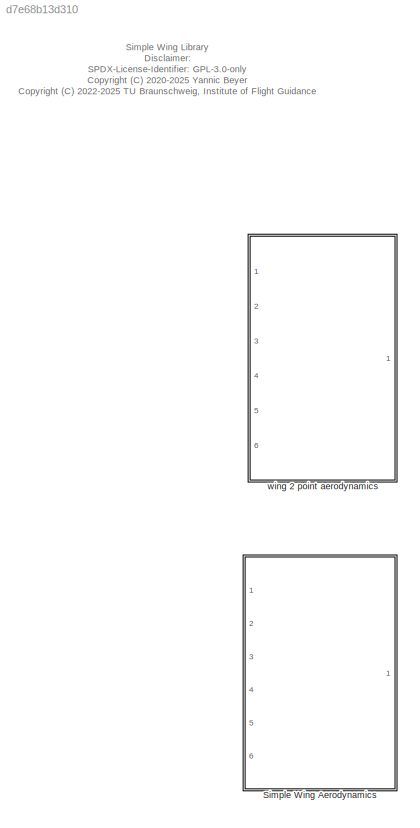
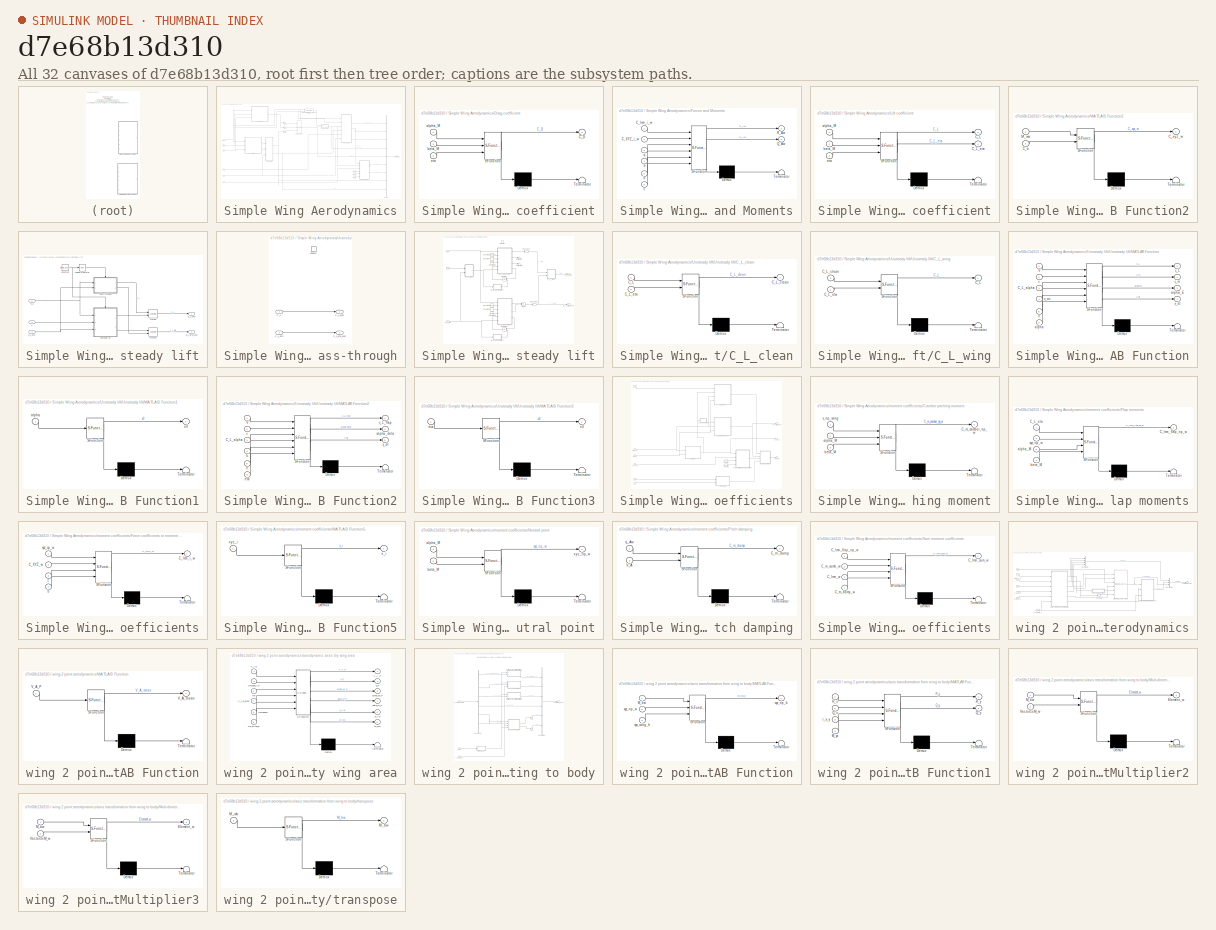
[diagram: thumbnail index - all 32 canvases of the model, root first then tree order]
MODEL slx_d7e68b13d310
KIND library
CONFIG AbsTol = auto
CONFIG EnableMultiTasking = off
CONFIG FixedStep = auto
CONFIG MaxStep = auto
CONFIG MinStep = auto
CONFIG RelTol = 1e-3
CONFIG SampleTimeConstraint = Unconstrained
CONFIG Solver = VariableStepAuto
CONFIG SolverName = VariableStepAuto
CONFIG StartTime = 0.0
CONFIG StopTime = 10.0
BLOCK [SubSystem] Simple Wing Aerodynamics
  Ports = [6, 1]
  RequestExecContextInheritance = off
BLOCK [BusCreator] Simple Wing Aerodynamics/Bus Creator
  DisplayOption = bar
  InheritFromInputs = on
  Inputs = 9
  Ports = [9, 1]
BLOCK [SubSystem] Simple Wing Aerodynamics/Drag coefficient
  ErrorFcn = Stateflow.Translate.translate
  PermitHierarchicalResolution = ExplicitOnly
  Ports = [3, 1]
  RequestExecContextInheritance = off
  SFBlockType = MATLAB Function
  TreatAsAtomicUnit = on
BLOCK [Demux] Simple Wing Aerodynamics/Drag coefficient/ Demux 
  Outputs = 1
  Ports = [1, 1]
BLOCK [S-Function] Simple Wing Aerodynamics/Drag coefficient/ SFunction 
  EnableBusSupport = off
  FunctionName = sf_sfun
  Parameters = wing
  PortCounts = [3 2]
  Ports = [3, 2]
  SFcnIsStateOwnerBlock = off
  SFunctionDeploymentMode = off
  Tag = Stateflow S-Function simple_wing_lib 8
BLOCK [Terminator] Simple Wing Aerodynamics/Drag coefficient/ Terminator 
BLOCK [Outport] Simple Wing Aerodynamics/Drag coefficient/C_D
  IconDisplay = Port number
BLOCK [Inport] Simple Wing Aerodynamics/Drag coefficient/alpha_M
  IconDisplay = Port number
BLOCK [Inport] Simple Wing Aerodynamics/Drag coefficient/beta_M
  IconDisplay = Port number
  Port = 2
BLOCK [Inport] Simple Wing Aerodynamics/Drag coefficient/eta
  IconDisplay = Port number
  Port = 3
BLOCK [SubSystem] Simple Wing Aerodynamics/Forces and Moments
  ErrorFcn = Stateflow.Translate.translate
  PermitHierarchicalResolution = ExplicitOnly
  Ports = [6, 2]
  RequestExecContextInheritance = off
  SFBlockType = MATLAB Function
  TreatAsAtomicUnit = on
BLOCK [Demux] Simple Wing Aerodynamics/Forces and Moments/ Demux 
  Outputs = 1
  Ports = [1, 1]
BLOCK [S-Function] Simple Wing Aerodynamics/Forces and Moments/ SFunction 
  EnableBusSupport = off
  FunctionName = sf_sfun
  PortCounts = [6 3]
  Ports = [6, 3]
  SFcnIsStateOwnerBlock = off
  SFunctionDeploymentMode = off
  Tag = Stateflow S-Function simple_wing_lib 10
BLOCK [Terminator] Simple Wing Aerodynamics/Forces and Moments/ Terminator 
BLOCK [Inport] Simple Wing Aerodynamics/Forces and Moments/C_XYZ_i_w
  IconDisplay = Port number
  Port = 2
BLOCK [Inport] Simple Wing Aerodynamics/Forces and Moments/C_lmn_i_w
  IconDisplay = Port number
BLOCK [Outport] Simple Wing Aerodynamics/Forces and Moments/Q_Aw
  IconDisplay = Port number
  Port = 2
BLOCK [Outport] Simple Wing Aerodynamics/Forces and Moments/R_Aw
  IconDisplay = Port number
BLOCK [Inport] Simple Wing Aerodynamics/Forces and Moments/S
  IconDisplay = Port number
  Port = 4
BLOCK [Inport] Simple Wing Aerodynamics/Forces and Moments/b
  IconDisplay = Port number
  Port = 5
BLOCK [Inport] Simple Wing Aerodynamics/Forces and Moments/c
  IconDisplay = Port number
  Port = 6
BLOCK [Inport] Simple Wing Aerodynamics/Forces and Moments/q
  IconDisplay = Port number
  Port = 3
BLOCK [Gain] Simple Wing Aerodynamics/Gain
  Gain = 0
  OutDataTypeStr = Inherit: Inherit via internal rule
  ParamDataTypeStr = Inherit: Inherit via internal rule
  SaturateOnIntegerOverflow = off
BLOCK [Gain] Simple Wing Aerodynamics/Gain4
  Gain = -1
  OutDataTypeStr = Inherit: Inherit via internal rule
  ParamDataTypeStr = Inherit: Inherit via internal rule
  SaturateOnIntegerOverflow = off
BLOCK [Gain] Simple Wing Aerodynamics/Gain5
  Gain = -1
  OutDataTypeStr = Inherit: Inherit via internal rule
  ParamDataTypeStr = Inherit: Inherit via internal rule
  SaturateOnIntegerOverflow = off
BLOCK [SubSystem] Simple Wing Aerodynamics/Lift coefficient
  ErrorFcn = Stateflow.Translate.translate
  PermitHierarchicalResolution = ExplicitOnly
  Ports = [3, 2]
  RequestExecContextInheritance = off
  SFBlockType = MATLAB Function
  TreatAsAtomicUnit = on
BLOCK [Demux] Simple Wing Aerodynamics/Lift coefficient/ Demux 
  Outputs = 1
  Ports = [1, 1]
BLOCK [S-Function] Simple Wing Aerodynamics/Lift coefficient/ SFunction 
  EnableBusSupport = off
  FunctionName = sf_sfun
  Parameters = wing
  PortCounts = [3 3]
  Ports = [3, 3]
  SFcnIsStateOwnerBlock = off
  SFunctionDeploymentMode = off
  Tag = Stateflow S-Function simple_wing_lib 12
BLOCK [Terminator] Simple Wing Aerodynamics/Lift coefficient/ Terminator 
BLOCK [Outport] Simple Wing Aerodynamics/Lift coefficient/C_L
  IconDisplay = Port number
BLOCK [Outport] Simple Wing Aerodynamics/Lift coefficient/C_L_eta
  IconDisplay = Port number
  Port = 2
BLOCK [Inport] Simple Wing Aerodynamics/Lift coefficient/alpha_M
  IconDisplay = Port number
BLOCK [Inport] Simple Wing Aerodynamics/Lift coefficient/beta_M
  IconDisplay = Port number
  Port = 2
BLOCK [Inport] Simple Wing Aerodynamics/Lift coefficient/eta
  IconDisplay = Port number
  Port = 3
BLOCK [SubSystem] Simple Wing Aerodynamics/MATLAB Function2
  ErrorFcn = Stateflow.Translate.translate
  PermitHierarchicalResolution = ExplicitOnly
  Ports = [2, 1]
  RequestExecContextInheritance = off
  SFBlockType = MATLAB Function
  TreatAsAtomicUnit = on
BLOCK [Demux] Simple Wing Aerodynamics/MATLAB Function2/ Demux 
  Outputs = 1
  Ports = [1, 1]
BLOCK [S-Function] Simple Wing Aerodynamics/MATLAB Function2/ SFunction 
  EnableBusSupport = off
  FunctionName = sf_sfun
  PortCounts = [2 2]
  Ports = [2, 2]
  SFcnIsStateOwnerBlock = off
  SFunctionDeploymentMode = off
  Tag = Stateflow S-Function simple_wing_lib 14
BLOCK [Terminator] Simple Wing Aerodynamics/MATLAB Function2/ Terminator 
BLOCK [Inport] Simple Wing Aerodynamics/MATLAB Function2/C_a
  IconDisplay = Port number
  Port = 2
BLOCK [Outport] Simple Wing Aerodynamics/MATLAB Function2/C_xyz_w
  IconDisplay = Port number
BLOCK [Inport] Simple Wing Aerodynamics/MATLAB Function2/M_wa
  IconDisplay = Port number
BLOCK [Concatenate] Simple Wing Aerodynamics/Matrix Concatenate1
  Mode = Multidimensional array
  NumInputs = 3
  Ports = [3, 1]
BLOCK [Reference] Simple Wing Aerodynamics/Rotations Matrix Wind to Body Modified Aero Angles  REF=axes_transformation_lib/Rotations Matrix  (lib defined in slx_69e2413c78c0)
Wind to Body
Modified Aero Angles
  Ports = [2, 1]
  SourceBlock = axes_transformation_lib/Rotations Matrix\nWind to Body\nModified Aero Angles
  SourceProductName = LADAC
  SourceType = SubSystem
BLOCK [Constant] Simple Wing Aerodynamics/S
  Value = wing.geometry.S/2*[1,1]
  VectorParams1D = off
BLOCK [SubSystem] Simple Wing Aerodynamics/Unsteady lift
  Ports = [3, 2]
  RequestExecContextInheritance = off
BLOCK [Inport] Simple Wing Aerodynamics/Unsteady lift/C_L
  IconDisplay = Port number
BLOCK [Inport] Simple Wing Aerodynamics/Unsteady lift/C_L_eta
  IconDisplay = Port number
  Port = 2
BLOCK [Outport] Simple Wing Aerodynamics/Unsteady lift/C_L_eta_unst
  IconDisplay = Port number
  Port = 2
BLOCK [Outport] Simple Wing Aerodynamics/Unsteady lift/C_L_unst
  IconDisplay = Port number
BLOCK [Constant] Simple Wing Aerodynamics/Unsteady lift/Constant
  Value = wing.is_unsteady
BLOCK [Logic] Simple Wing Aerodynamics/Unsteady lift/Logical Operator
  AllPortsSameDT = off
  Operator = NOT
  OutDataTypeStr = boolean
  Ports = [1, 1]
BLOCK [Merge] Simple Wing Aerodynamics/Unsteady lift/Merge
  Ports = [2, 1]
BLOCK [Merge] Simple Wing Aerodynamics/Unsteady lift/Merge1
  Ports = [2, 1]
BLOCK [SubSystem] Simple Wing Aerodynamics/Unsteady lift/Pass-through
  Ports = [2, 2, 1]
  RequestExecContextInheritance = off
BLOCK [Inport] Simple Wing Aerodynamics/Unsteady lift/Pass-through/C_L
  IconDisplay = Port number
BLOCK [Inport] Simple Wing Aerodynamics/Unsteady lift/Pass-through/C_L_eta
  IconDisplay = Port number
  Port = 2
BLOCK [Outport] Simple Wing Aerodynamics/Unsteady lift/Pass-through/C_L_eta_unst
  IconDisplay = Port number
  Port = 2
BLOCK [Outport] Simple Wing Aerodynamics/Unsteady lift/Pass-through/C_L_unst
  IconDisplay = Port number
BLOCK [EnablePort] Simple Wing Aerodynamics/Unsteady lift/Pass-through/Enable
  Ports = []
BLOCK [SubSystem] Simple Wing Aerodynamics/Unsteady lift/Unsteady lift
  Ports = [3, 2, 1]
  RequestExecContextInheritance = off
BLOCK [Inport] Simple Wing Aerodynamics/Unsteady lift/Unsteady lift/C_L
  IconDisplay = Port number
BLOCK [SubSystem] Simple Wing Aerodynamics/Unsteady lift/Unsteady lift/C_L_clean
  ErrorFcn = Stateflow.Translate.translate
  PermitHierarchicalResolution = ExplicitOnly
  Ports = [2, 1]
  RequestExecContextInheritance = off
  SFBlockType = MATLAB Function
  TreatAsAtomicUnit = on
BLOCK [Demux] Simple Wing Aerodynamics/Unsteady lift/Unsteady lift/C_L_clean/ Demux 
  Outputs = 1
  Ports = [1, 1]
BLOCK [S-Function] Simple Wing Aerodynamics/Unsteady lift/Unsteady lift/C_L_clean/ SFunction 
  EnableBusSupport = on
  FunctionName = sf_sfun
  PortCounts = [2 2]
  Ports = [2, 2]
  SFcnIsStateOwnerBlock = off
  SFunctionDeploymentMode = off
  Tag = Stateflow S-Function simple_wing_lib 332
BLOCK [Terminator] Simple Wing Aerodynamics/Unsteady lift/Unsteady lift/C_L_clean/ Terminator 
BLOCK [Inport] Simple Wing Aerodynamics/Unsteady lift/Unsteady lift/C_L_clean/C_L
  IconDisplay = Port number
BLOCK [Outport] Simple Wing Aerodynamics/Unsteady lift/Unsteady lift/C_L_clean/C_L_clean
  IconDisplay = Port number
BLOCK [Inport] Simple Wing Aerodynamics/Unsteady lift/Unsteady lift/C_L_clean/C_L_eta
  IconDisplay = Port number
  Port = 2
BLOCK [Inport] Simple Wing Aerodynamics/Unsteady lift/Unsteady lift/C_L_eta
  IconDisplay = Port number
  Port = 3
BLOCK [Outport] Simple Wing Aerodynamics/Unsteady lift/Unsteady lift/C_L_eta_unst
  IconDisplay = Port number
  Port = 2
BLOCK [Outport] Simple Wing Aerodynamics/Unsteady lift/Unsteady lift/C_L_unst
  IconDisplay = Port number
BLOCK [SubSystem] Simple Wing Aerodynamics/Unsteady lift/Unsteady lift/C_L_wing
  ErrorFcn = Stateflow.Translate.translate
  PermitHierarchicalResolution = ExplicitOnly
  Ports = [2, 1]
  RequestExecContextInheritance = off
  SFBlockType = MATLAB Function
  TreatAsAtomicUnit = on
BLOCK [Demux] Simple Wing Aerodynamics/Unsteady lift/Unsteady lift/C_L_wing/ Demux 
  Outputs = 1
  Ports = [1, 1]
BLOCK [S-Function] Simple Wing Aerodynamics/Unsteady lift/Unsteady lift/C_L_wing/ SFunction 
  EnableBusSupport = on
  FunctionName = sf_sfun
  PortCounts = [2 2]
  Ports = [2, 2]
  SFcnIsStateOwnerBlock = off
  SFunctionDeploymentMode = off
  Tag = Stateflow S-Function simple_wing_lib 333
BLOCK [Terminator] Simple Wing Aerodynamics/Unsteady lift/Unsteady lift/C_L_wing/ Terminator 
BLOCK [Outport] Simple Wing Aerodynamics/Unsteady lift/Unsteady lift/C_L_wing/C_L
  IconDisplay = Port number
BLOCK [Inport] Simple Wing Aerodynamics/Unsteady lift/Unsteady lift/C_L_wing/C_L_clean
  IconDisplay = Port number
BLOCK [Inport] Simple Wing Aerodynamics/Unsteady lift/Unsteady lift/C_L_wing/C_L_eta
  IconDisplay = Port number
  Port = 2
BLOCK [Constant] Simple Wing Aerodynamics/Unsteady lift/Unsteady lift/Constant
  Value = wing.geometry.S/wing.geometry.b
BLOCK [Constant] Simple Wing Aerodynamics/Unsteady lift/Unsteady lift/Constant1
BLOCK [Constant] Simple Wing Aerodynamics/Unsteady lift/Unsteady lift/Constant2
  Value = 0.25
BLOCK [Constant] Simple Wing Aerodynamics/Unsteady lift/Unsteady lift/Constant3
  Value = wing.geometry.S/wing.geometry.b
BLOCK [Constant] Simple Wing Aerodynamics/Unsteady lift/Unsteady lift/Constant4
  Value = wing.flap.lambda_K
BLOCK [Constant] Simple Wing Aerodynamics/Unsteady lift/Unsteady lift/Constant5
BLOCK [Product] Simple Wing Aerodynamics/Unsteady lift/Unsteady lift/Divide
  InputSameDT = off
  Inputs = */
  OutDataTypeStr = Inherit: Inherit via internal rule
  Ports = [2, 1]
  RndMeth = Floor
  SaturateOnIntegerOverflow = off
BLOCK [EnablePort] Simple Wing Aerodynamics/Unsteady lift/Unsteady lift/Enable
  Ports = []
BLOCK [Integrator] Simple Wing Aerodynamics/Unsteady lift/Unsteady lift/Integrator
  InitialConditionSource = external
  Ports = [2, 1]
BLOCK [Integrator] Simple Wing Aerodynamics/Unsteady lift/Unsteady lift/Integrator1
  InitialConditionSource = external
  Ports = [2, 1]
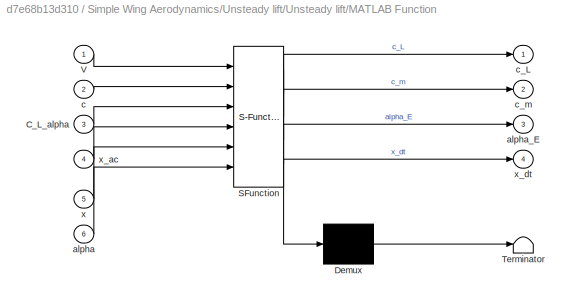
BLOCK [SubSystem] Simple Wing Aerodynamics/Unsteady lift/Unsteady lift/MATLAB Function
  ErrorFcn = Stateflow.Translate.translate
  PermitHierarchicalResolution = ExplicitOnly
  Ports = [6, 4]
  RequestExecContextInheritance = off
  SFBlockType = MATLAB Function
  TreatAsAtomicUnit = on
BLOCK [Demux] Simple Wing Aerodynamics/Unsteady lift/Unsteady lift/MATLAB Function/ Demux 
  Outputs = 1
  Ports = [1, 1]
BLOCK [S-Function] Simple Wing Aerodynamics/Unsteady lift/Unsteady lift/MATLAB Function/ SFunction 
  EnableBusSupport = on
  FunctionName = sf_sfun
  PortCounts = [6 5]
  Ports = [6, 5]
  SFcnIsStateOwnerBlock = off
  SFunctionDeploymentMode = off
  Tag = Stateflow S-Function simple_wing_lib 334
BLOCK [Terminator] Simple Wing Aerodynamics/Unsteady lift/Unsteady lift/MATLAB Function/ Terminator 
BLOCK [Inport] Simple Wing Aerodynamics/Unsteady lift/Unsteady lift/MATLAB Function/C_L_alpha
  IconDisplay = Port number
  Port = 3
BLOCK [Inport] Simple Wing Aerodynamics/Unsteady lift/Unsteady lift/MATLAB Function/V
  IconDisplay = Port number
BLOCK [Inport] Simple Wing Aerodynamics/Unsteady lift/Unsteady lift/MATLAB Function/alpha
  IconDisplay = Port number
  Port = 6
BLOCK [Outport] Simple Wing Aerodynamics/Unsteady lift/Unsteady lift/MATLAB Function/alpha_E
  IconDisplay = Port number
  Port = 3
BLOCK [Inport] Simple Wing Aerodynamics/Unsteady lift/Unsteady lift/MATLAB Function/c
  IconDisplay = Port number
  Port = 2
BLOCK [Outport] Simple Wing Aerodynamics/Unsteady lift/Unsteady lift/MATLAB Function/c_L
  IconDisplay = Port number
BLOCK [Outport] Simple Wing Aerodynamics/Unsteady lift/Unsteady lift/MATLAB Function/c_m
  IconDisplay = Port number
  Port = 2
BLOCK [Inport] Simple Wing Aerodynamics/Unsteady lift/Unsteady lift/MATLAB Function/x
  IconDisplay = Port number
  Port = 5
BLOCK [Inport] Simple Wing Aerodynamics/Unsteady lift/Unsteady lift/MATLAB Function/x_ac
  IconDisplay = Port number
  Port = 4
BLOCK [Outport] Simple Wing Aerodynamics/Unsteady lift/Unsteady lift/MATLAB Function/x_dt
  IconDisplay = Port number
  Port = 4
BLOCK [SubSystem] Simple Wing Aerodynamics/Unsteady lift/Unsteady lift/MATLAB Function1
  ErrorFcn = Stateflow.Translate.translate
  PermitHierarchicalResolution = ExplicitOnly
  Ports = [1, 1]
  RequestExecContextInheritance = off
  SFBlockType = MATLAB Function
  TreatAsAtomicUnit = on
BLOCK [Demux] Simple Wing Aerodynamics/Unsteady lift/Unsteady lift/MATLAB Function1/ Demux 
  Outputs = 1
  Ports = [1, 1]
BLOCK [S-Function] Simple Wing Aerodynamics/Unsteady lift/Unsteady lift/MATLAB Function1/ SFunction 
  EnableBusSupport = on
  FunctionName = sf_sfun
  PortCounts = [1 2]
  Ports = [1, 2]
  SFcnIsStateOwnerBlock = off
  SFunctionDeploymentMode = off
  Tag = Stateflow S-Function simple_wing_lib 335
BLOCK [Terminator] Simple Wing Aerodynamics/Unsteady lift/Unsteady lift/MATLAB Function1/ Terminator 
BLOCK [Inport] Simple Wing Aerodynamics/Unsteady lift/Unsteady lift/MATLAB Function1/alpha
  IconDisplay = Port number
BLOCK [Outport] Simple Wing Aerodynamics/Unsteady lift/Unsteady lift/MATLAB Function1/x0
  IconDisplay = Port number
BLOCK [SubSystem] Simple Wing Aerodynamics/Unsteady lift/Unsteady lift/MATLAB Function2
  ErrorFcn = Stateflow.Translate.translate
  PermitHierarchicalResolution = ExplicitOnly
  Ports = [6, 3]
  RequestExecContextInheritance = off
  SFBlockType = MATLAB Function
  TreatAsAtomicUnit = on
BLOCK [Demux] Simple Wing Aerodynamics/Unsteady lift/Unsteady lift/MATLAB Function2/ Demux 
  Outputs = 1
  Ports = [1, 1]
BLOCK [S-Function] Simple Wing Aerodynamics/Unsteady lift/Unsteady lift/MATLAB Function2/ SFunction 
  EnableBusSupport = off
  FunctionName = sf_sfun
  PortCounts = [6 4]
  Ports = [6, 4]
  SFcnIsStateOwnerBlock = off
  SFunctionDeploymentMode = off
  Tag = Stateflow S-Function simple_wing_lib 13
BLOCK [Terminator] Simple Wing Aerodynamics/Unsteady lift/Unsteady lift/MATLAB Function2/ Terminator 
BLOCK [Inport] Simple Wing Aerodynamics/Unsteady lift/Unsteady lift/MATLAB Function2/C_L_alpha
  IconDisplay = Port number
  Port = 3
BLOCK [Inport] Simple Wing Aerodynamics/Unsteady lift/Unsteady lift/MATLAB Function2/E
  IconDisplay = Port number
  Port = 4
BLOCK [Inport] Simple Wing Aerodynamics/Unsteady lift/Unsteady lift/MATLAB Function2/V
  IconDisplay = Port number
BLOCK [Outport] Simple Wing Aerodynamics/Unsteady lift/Unsteady lift/MATLAB Function2/alpha_deta
  IconDisplay = Port number
  Port = 2
BLOCK [Inport] Simple Wing Aerodynamics/Unsteady lift/Unsteady lift/MATLAB Function2/c
  IconDisplay = Port number
  Port = 2
BLOCK [Outport] Simple Wing Aerodynamics/Unsteady lift/Unsteady lift/MATLAB Function2/c_L_flap
  IconDisplay = Port number
BLOCK [Inport] Simple Wing Aerodynamics/Unsteady lift/Unsteady lift/MATLAB Function2/eta
  IconDisplay = Port number
  Port = 6
BLOCK [Inport] Simple Wing Aerodynamics/Unsteady lift/Unsteady lift/MATLAB Function2/x
  IconDisplay = Port number
  Port = 5
BLOCK [Outport] Simple Wing Aerodynamics/Unsteady lift/Unsteady lift/MATLAB Function2/x_dt
  IconDisplay = Port number
  Port = 3
BLOCK [SubSystem] Simple Wing Aerodynamics/Unsteady lift/Unsteady lift/MATLAB Function3
  ErrorFcn = Stateflow.Translate.translate
  PermitHierarchicalResolution = ExplicitOnly
  Ports = [1, 1]
  RequestExecContextInheritance = off
  SFBlockType = MATLAB Function
  TreatAsAtomicUnit = on
BLOCK [Demux] Simple Wing Aerodynamics/Unsteady lift/Unsteady lift/MATLAB Function3/ Demux 
  Outputs = 1
  Ports = [1, 1]
BLOCK [S-Function] Simple Wing Aerodynamics/Unsteady lift/Unsteady lift/MATLAB Function3/ SFunction 
  EnableBusSupport = off
  FunctionName = sf_sfun
  PortCounts = [1 2]
  Ports = [1, 2]
  SFcnIsStateOwnerBlock = off
  SFunctionDeploymentMode = off
  Tag = Stateflow S-Function simple_wing_lib 17
BLOCK [Terminator] Simple Wing Aerodynamics/Unsteady lift/Unsteady lift/MATLAB Function3/ Terminator 
BLOCK [Inport] Simple Wing Aerodynamics/Unsteady lift/Unsteady lift/MATLAB Function3/eta
  IconDisplay = Port number
BLOCK [Outport] Simple Wing Aerodynamics/Unsteady lift/Unsteady lift/MATLAB Function3/x0
  IconDisplay = Port number
BLOCK [Reshape] Simple Wing Aerodynamics/Unsteady lift/Unsteady lift/Reshape1
  OutputDimensionality = Row vector (2-D)
  Ports = [1, 1]
BLOCK [Reshape] Simple Wing Aerodynamics/Unsteady lift/Unsteady lift/Reshape2
  OutputDimensionality = Row vector (2-D)
  Ports = [1, 1]
BLOCK [Terminator] Simple Wing Aerodynamics/Unsteady lift/Unsteady lift/Terminator
BLOCK [Terminator] Simple Wing Aerodynamics/Unsteady lift/Unsteady lift/Terminator1
BLOCK [Inport] Simple Wing Aerodynamics/Unsteady lift/Unsteady lift/V
  IconDisplay = Port number
  Port = 2
BLOCK [Inport] Simple Wing Aerodynamics/Unsteady lift/V
  IconDisplay = Port number
  Port = 3
BLOCK [Inport] Simple Wing Aerodynamics/V_A
  IconDisplay = Port number
  Port = 5
BLOCK [Inport] Simple Wing Aerodynamics/alpha_M
  IconDisplay = Port number
BLOCK [Constant] Simple Wing Aerodynamics/b
  Value = wing.geometry.b
BLOCK [Inport] Simple Wing Aerodynamics/beta_M
  IconDisplay = Port number
  Port = 2
BLOCK [Constant] Simple Wing Aerodynamics/c
  Value = wing.geometry.c
BLOCK [Inport] Simple Wing Aerodynamics/eta
  IconDisplay = Port number
  Port = 3
BLOCK [SubSystem] Simple Wing Aerodynamics/moment coefficients
  Ports = [6, 3]
  RequestExecContextInheritance = off
BLOCK [Inport] Simple Wing Aerodynamics/moment coefficients/C_Leta
  IconDisplay = Port number
  Port = 4
BLOCK [Inport] Simple Wing Aerodynamics/moment coefficients/C_XYZ_w
  IconDisplay = Port number
  Port = 3
BLOCK [Outport] Simple Wing Aerodynamics/moment coefficients/C_lmn_i_w
  IconDisplay = Port number
  Port = 2
BLOCK [Outport] Simple Wing Aerodynamics/moment coefficients/C_m_camber_np_w
  IconDisplay = Port number
BLOCK [SubSystem] Simple Wing Aerodynamics/moment coefficients/Camber pitching moment
  ErrorFcn = Stateflow.Translate.translate
  PermitHierarchicalResolution = ExplicitOnly
  Ports = [3, 1]
  RequestExecContextInheritance = off
  SFBlockType = MATLAB Function
  TreatAsAtomicUnit = on
BLOCK [Demux] Simple Wing Aerodynamics/moment coefficients/Camber pitching moment/ Demux 
  Outputs = 1
  Ports = [1, 1]
BLOCK [S-Function] Simple Wing Aerodynamics/moment coefficients/Camber pitching moment/ SFunction 
  EnableBusSupport = off
  FunctionName = sf_sfun
  Parameters = wing
  PortCounts = [3 2]
  Ports = [3, 2]
  SFcnIsStateOwnerBlock = off
  SFunctionDeploymentMode = off
  Tag = Stateflow S-Function simple_wing_lib 18
BLOCK [Terminator] Simple Wing Aerodynamics/moment coefficients/Camber pitching moment/ Terminator 
BLOCK [Outport] Simple Wing Aerodynamics/moment coefficients/Camber pitching moment/C_m_camber_np_w
  IconDisplay = Port number
BLOCK [Inport] Simple Wing Aerodynamics/moment coefficients/Camber pitching moment/alpha_M
  IconDisplay = Port number
  Port = 2
BLOCK [Inport] Simple Wing Aerodynamics/moment coefficients/Camber pitching moment/beta_M
  IconDisplay = Port number
  Port = 3
BLOCK [Inport] Simple Wing Aerodynamics/moment coefficients/Camber pitching moment/x_np_wing
  IconDisplay = Port number
BLOCK [Constant] Simple Wing Aerodynamics/moment coefficients/Constant
  Value = wing.geometry.c
BLOCK [Constant] Simple Wing Aerodynamics/moment coefficients/Constant1
  Value = wing.geometry.b
BLOCK [SubSystem] Simple Wing Aerodynamics/moment coefficients/Flap moments
  ErrorFcn = Stateflow.Translate.translate
  PermitHierarchicalResolution = ExplicitOnly
  Ports = [4, 1]
  RequestExecContextInheritance = off
  SFBlockType = MATLAB Function
  TreatAsAtomicUnit = on
BLOCK [Demux] Simple Wing Aerodynamics/moment coefficients/Flap moments/ Demux 
  Outputs = 1
  Ports = [1, 1]
BLOCK [S-Function] Simple Wing Aerodynamics/moment coefficients/Flap moments/ SFunction 
  EnableBusSupport = off
  FunctionName = sf_sfun
  Parameters = wing
  PortCounts = [4 2]
  Ports = [4, 2]
  SFcnIsStateOwnerBlock = off
  SFunctionDeploymentMode = off
  Tag = Stateflow S-Function simple_wing_lib 1
BLOCK [Terminator] Simple Wing Aerodynamics/moment coefficients/Flap moments/ Terminator 
BLOCK [Inport] Simple Wing Aerodynamics/moment coefficients/Flap moments/C_L_eta
  IconDisplay = Port number
BLOCK [Outport] Simple Wing Aerodynamics/moment coefficients/Flap moments/C_lmn_flap_np_w
  IconDisplay = Port number
BLOCK [Inport] Simple Wing Aerodynamics/moment coefficients/Flap moments/alpha_M
  IconDisplay = Port number
  Port = 3
BLOCK [Inport] Simple Wing Aerodynamics/moment coefficients/Flap moments/beta_M
  IconDisplay = Port number
  Port = 4
BLOCK [Inport] Simple Wing Aerodynamics/moment coefficients/Flap moments/xyz_np_w
  IconDisplay = Port number
  Port = 2
BLOCK [SubSystem] Simple Wing Aerodynamics/moment coefficients/Force coefficients to moment coefficients
  ErrorFcn = Stateflow.Translate.translate
  PermitHierarchicalResolution = ExplicitOnly
  Ports = [4, 1]
  RequestExecContextInheritance = off
  SFBlockType = MATLAB Function
  TreatAsAtomicUnit = on
BLOCK [Demux] Simple Wing Aerodynamics/moment coefficients/Force coefficients to moment coefficients/ Demux 
  Outputs = 1
  Ports = [1, 1]
BLOCK [S-Function] Simple Wing Aerodynamics/moment coefficients/Force coefficients to moment coefficients/ SFunction 
  EnableBusSupport = off
  FunctionName = sf_sfun
  PortCounts = [4 2]
  Ports = [4, 2]
  SFcnIsStateOwnerBlock = off
  SFunctionDeploymentMode = off
  Tag = Stateflow S-Function simple_wing_lib 15
BLOCK [Terminator] Simple Wing Aerodynamics/moment coefficients/Force coefficients to moment coefficients/ Terminator 
BLOCK [Inport] Simple Wing Aerodynamics/moment coefficients/Force coefficients to moment coefficients/C_XYZ_w
  IconDisplay = Port number
  Port = 2
BLOCK [Outport] Simple Wing Aerodynamics/moment coefficients/Force coefficients to moment coefficients/C_lmn_i_w
  IconDisplay = Port number
BLOCK [Inport] Simple Wing Aerodynamics/moment coefficients/Force coefficients to moment coefficients/b
  IconDisplay = Port number
  Port = 4
BLOCK [Inport] Simple Wing Aerodynamics/moment coefficients/Force coefficients to moment coefficients/c
  IconDisplay = Port number
  Port = 3
BLOCK [Inport] Simple Wing Aerodynamics/moment coefficients/Force coefficients to moment coefficients/xyz_cp_w
  IconDisplay = Port number
BLOCK [SubSystem] Simple Wing Aerodynamics/moment coefficients/MATLAB Function5
  ErrorFcn = Stateflow.Translate.translate
  PermitHierarchicalResolution = ExplicitOnly
  Ports = [1, 1]
  RequestExecContextInheritance = off
  SFBlockType = MATLAB Function
  TreatAsAtomicUnit = on
BLOCK [Demux] Simple Wing Aerodynamics/moment coefficients/MATLAB Function5/ Demux 
  Outputs = 1
  Ports = [1, 1]
BLOCK [S-Function] Simple Wing Aerodynamics/moment coefficients/MATLAB Function5/ SFunction 
  EnableBusSupport = off
  FunctionName = sf_sfun
  PortCounts = [1 2]
  Ports = [1, 2]
  SFcnIsStateOwnerBlock = off
  SFunctionDeploymentMode = off
  Tag = Stateflow S-Function simple_wing_lib 2
BLOCK [Terminator] Simple Wing Aerodynamics/moment coefficients/MATLAB Function5/ Terminator 
BLOCK [Outport] Simple Wing Aerodynamics/moment coefficients/MATLAB Function5/x_i
  IconDisplay = Port number
BLOCK [Inport] Simple Wing Aerodynamics/moment coefficients/MATLAB Function5/xyz_i
  IconDisplay = Port number
BLOCK [SubSystem] Simple Wing Aerodynamics/moment coefficients/Neutral point
  ErrorFcn = Stateflow.Translate.translate
  PermitHierarchicalResolution = ExplicitOnly
  Ports = [2, 1]
  RequestExecContextInheritance = off
  SFBlockType = MATLAB Function
  TreatAsAtomicUnit = on
BLOCK [Demux] Simple Wing Aerodynamics/moment coefficients/Neutral point/ Demux 
  Outputs = 1
  Ports = [1, 1]
BLOCK [S-Function] Simple Wing Aerodynamics/moment coefficients/Neutral point/ SFunction 
  EnableBusSupport = off
  FunctionName = sf_sfun
  Parameters = wing
  PortCounts = [2 2]
  Ports = [2, 2]
  SFcnIsStateOwnerBlock = off
  SFunctionDeploymentMode = off
  Tag = Stateflow S-Function simple_wing_lib 19
BLOCK [Terminator] Simple Wing Aerodynamics/moment coefficients/Neutral point/ Terminator 
BLOCK [Inport] Simple Wing Aerodynamics/moment coefficients/Neutral point/alpha_M
  IconDisplay = Port number
BLOCK [Inport] Simple Wing Aerodynamics/moment coefficients/Neutral point/beta_M
  IconDisplay = Port number
  Port = 2
BLOCK [Outport] Simple Wing Aerodynamics/moment coefficients/Neutral point/xyz_np_w
  IconDisplay = Port number
BLOCK [SubSystem] Simple Wing Aerodynamics/moment coefficients/Pitch damping
  ErrorFcn = Stateflow.Translate.translate
  PermitHierarchicalResolution = ExplicitOnly
  Ports = [2, 1]
  RequestExecContextInheritance = off
  SFBlockType = MATLAB Function
  TreatAsAtomicUnit = on
BLOCK [Demux] Simple Wing Aerodynamics/moment coefficients/Pitch damping/ Demux 
  Outputs = 1
  Ports = [1, 1]
BLOCK [S-Function] Simple Wing Aerodynamics/moment coefficients/Pitch damping/ SFunction 
  EnableBusSupport = off
  FunctionName = sf_sfun
  Parameters = wing
  PortCounts = [2 2]
  Ports = [2, 2]
  SFcnIsStateOwnerBlock = off
  SFunctionDeploymentMode = off
  Tag = Stateflow S-Function simple_wing_lib 20
BLOCK [Terminator] Simple Wing Aerodynamics/moment coefficients/Pitch damping/ Terminator 
BLOCK [Outport] Simple Wing Aerodynamics/moment coefficients/Pitch damping/C_m_damp
  IconDisplay = Port number
BLOCK [Inport] Simple Wing Aerodynamics/moment coefficients/Pitch damping/V_A
  IconDisplay = Port number
  Port = 2
BLOCK [Inport] Simple Wing Aerodynamics/moment coefficients/Pitch damping/q_Aw
  IconDisplay = Port number
BLOCK [SubSystem] Simple Wing Aerodynamics/moment coefficients/Sum moment coefficients
  ErrorFcn = Stateflow.Translate.translate
  PermitHierarchicalResolution = ExplicitOnly
  Ports = [4, 1]
  RequestExecContextInheritance = off
  SFBlockType = MATLAB Function
  TreatAsAtomicUnit = on
BLOCK [Demux] Simple Wing Aerodynamics/moment coefficients/Sum moment coefficients/ Demux 
  Outputs = 1
  Ports = [1, 1]
BLOCK [S-Function] Simple Wing Aerodynamics/moment coefficients/Sum moment coefficients/ SFunction 
  EnableBusSupport = off
  FunctionName = sf_sfun
  PortCounts = [4 2]
  Ports = [4, 2]
  SFcnIsStateOwnerBlock = off
  SFunctionDeploymentMode = off
  Tag = Stateflow S-Function simple_wing_lib 16
BLOCK [Terminator] Simple Wing Aerodynamics/moment coefficients/Sum moment coefficients/ Terminator 
BLOCK [Inport] Simple Wing Aerodynamics/moment coefficients/Sum moment coefficients/C_lmn_flap_np_w
  IconDisplay = Port number
BLOCK [Outport] Simple Wing Aerodynamics/moment coefficients/Sum moment coefficients/C_lmn_sum_w
  IconDisplay = Port number
BLOCK [Inport] Simple Wing Aerodynamics/moment coefficients/Sum moment coefficients/C_lmn_w
  IconDisplay = Port number
  Port = 3
BLOCK [Inport] Simple Wing Aerodynamics/moment coefficients/Sum moment coefficients/C_m_camb_w
  IconDisplay = Port number
  Port = 2
BLOCK [Inport] Simple Wing Aerodynamics/moment coefficients/Sum moment coefficients/C_m_damp_w
  IconDisplay = Port number
  Port = 4
BLOCK [Inport] Simple Wing Aerodynamics/moment coefficients/V_A
  IconDisplay = Port number
  Port = 6
BLOCK [Inport] Simple Wing Aerodynamics/moment coefficients/alpha_M
  IconDisplay = Port number
BLOCK [Inport] Simple Wing Aerodynamics/moment coefficients/beta_M
  IconDisplay = Port number
  Port = 2
BLOCK [Inport] Simple Wing Aerodynamics/moment coefficients/q_Aw
  IconDisplay = Port number
  Port = 5
BLOCK [Outport] Simple Wing Aerodynamics/moment coefficients/xyz_np_w
  IconDisplay = Port number
  Port = 3
BLOCK [Inport] Simple Wing Aerodynamics/q
  IconDisplay = Port number
  Port = 6
BLOCK [Inport] Simple Wing Aerodynamics/q_Ab
  IconDisplay = Port number
  Port = 4
BLOCK [Outport] Simple Wing Aerodynamics/simpleWingAero
  IconDisplay = Port number
BLOCK [SubSystem] wing 2 point aerodynamics
  Ports = [6, 1]
  RequestExecContextInheritance = off
BLOCK [BusCreator] wing 2 point aerodynamics/Bus Creator
  DisplayOption = bar
  InheritFromInputs = on
  Inputs = 4
  Ports = [4, 1]
BLOCK [BusCreator] wing 2 point aerodynamics/Bus Creator1
  DisplayOption = bar
  InheritFromInputs = on
  Inputs = 3
  Ports = [3, 1]
BLOCK [SubSystem] wing 2 point aerodynamics/MATLAB Function
  ErrorFcn = Stateflow.Translate.translate
  PermitHierarchicalResolution = ExplicitOnly
  Ports = [1, 1]
  RequestExecContextInheritance = off
  SFBlockType = MATLAB Function
  TreatAsAtomicUnit = on
BLOCK [Demux] wing 2 point aerodynamics/MATLAB Function/ Demux 
  Outputs = 1
  Ports = [1, 1]
BLOCK [S-Function] wing 2 point aerodynamics/MATLAB Function/ SFunction 
  EnableBusSupport = off
  FunctionName = sf_sfun
  PortCounts = [1 2]
  Ports = [1, 2]
  SFcnIsStateOwnerBlock = off
  SFunctionDeploymentMode = off
  Tag = Stateflow S-Function simple_wing_lib 3
BLOCK [Terminator] wing 2 point aerodynamics/MATLAB Function/ Terminator 
BLOCK [Inport] wing 2 point aerodynamics/MATLAB Function/V_A_P
  IconDisplay = Port number
BLOCK [Outport] wing 2 point aerodynamics/MATLAB Function/V_A_mean
  IconDisplay = Port number
BLOCK [Inport] wing 2 point aerodynamics/Omega_Ab
  IconDisplay = Port number
  Port = 4
BLOCK [Reshape] wing 2 point aerodynamics/Reshape
  OutputDimensionality = Row vector (2-D)
  Ports = [1, 1]
BLOCK [Reference] wing 2 point aerodynamics/Simple Wing Aerodynamics  REF=$bdroot/Simple Wing Aerodynamics
  Ports = [6, 1]
  SourceBlock = $bdroot/Simple Wing Aerodynamics
BLOCK [Inport] wing 2 point aerodynamics/V_Ab
  IconDisplay = Port number
BLOCK [Inport] wing 2 point aerodynamics/V_Ab_prop
  IconDisplay = Port number
  Port = 5
BLOCK [Outport] wing 2 point aerodynamics/aeroWing2point
  IconDisplay = Port number
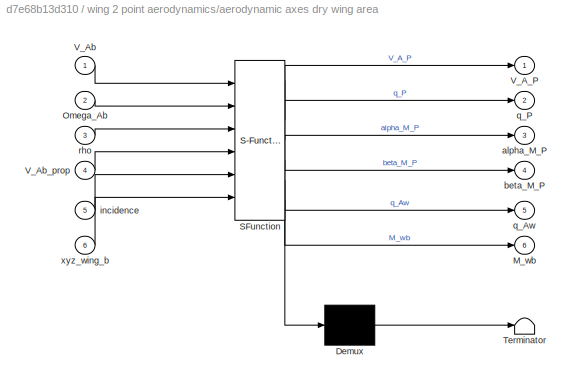
BLOCK [SubSystem] wing 2 point aerodynamics/aerodynamic axes dry wing area
  ErrorFcn = Stateflow.Translate.translate
  PermitHierarchicalResolution = ExplicitOnly
  Ports = [6, 6]
  RequestExecContextInheritance = off
  SFBlockType = MATLAB Function
  TreatAsAtomicUnit = on
BLOCK [Demux] wing 2 point aerodynamics/aerodynamic axes dry wing area/ Demux 
  Outputs = 1
  Ports = [1, 1]
BLOCK [S-Function] wing 2 point aerodynamics/aerodynamic axes dry wing area/ SFunction 
  EnableBusSupport = off
  FunctionName = sf_sfun
  Parameters = wing
  PortCounts = [6 7]
  Ports = [6, 7]
  SFcnIsStateOwnerBlock = off
  SFunctionDeploymentMode = off
  Tag = Stateflow S-Function simple_wing_lib 4
BLOCK [Terminator] wing 2 point aerodynamics/aerodynamic axes dry wing area/ Terminator 
BLOCK [Outport] wing 2 point aerodynamics/aerodynamic axes dry wing area/M_wb
  IconDisplay = Port number
  Port = 6
BLOCK [Inport] wing 2 point aerodynamics/aerodynamic axes dry wing area/Omega_Ab
  IconDisplay = Port number
  Port = 2
BLOCK [Outport] wing 2 point aerodynamics/aerodynamic axes dry wing area/V_A_P
  IconDisplay = Port number
BLOCK [Inport] wing 2 point aerodynamics/aerodynamic axes dry wing area/V_Ab
  IconDisplay = Port number
BLOCK [Inport] wing 2 point aerodynamics/aerodynamic axes dry wing area/V_Ab_prop
  IconDisplay = Port number
  Port = 4
BLOCK [Outport] wing 2 point aerodynamics/aerodynamic axes dry wing area/alpha_M_P
  IconDisplay = Port number
  Port = 3
BLOCK [Outport] wing 2 point aerodynamics/aerodynamic axes dry wing area/beta_M_P
  IconDisplay = Port number
  Port = 4
BLOCK [Inport] wing 2 point aerodynamics/aerodynamic axes dry wing area/incidence
  IconDisplay = Port number
  Port = 5
BLOCK [Outport] wing 2 point aerodynamics/aerodynamic axes dry wing area/q_Aw
  IconDisplay = Port number
  Port = 5
BLOCK [Outport] wing 2 point aerodynamics/aerodynamic axes dry wing area/q_P
  IconDisplay = Port number
  Port = 2
BLOCK [Inport] wing 2 point aerodynamics/aerodynamic axes dry wing area/rho
  IconDisplay = Port number
  Port = 3
BLOCK [Inport] wing 2 point aerodynamics/aerodynamic axes dry wing area/xyz_wing_b
  IconDisplay = Port number
  Port = 6
BLOCK [SubSystem] wing 2 point aerodynamics/axis transformation from wing to body
  Ports = [3, 1]
  RequestExecContextInheritance = off
BLOCK [BusCreator] wing 2 point aerodynamics/axis transformation from wing to body/Bus Creator
  DisplayOption = bar
  InheritFromInputs = on
  Inputs = 6
  Ports = [6, 1]
BLOCK [BusSelector] wing 2 point aerodynamics/axis transformation from wing to body/Bus Selector
  OutputAsBus = off
  OutputSignals = C_m_camber_np_w,xyz_np_w,C_XYZ_i_w,C_XYZ_a,R_Aw,Q_Aw
  Ports = [1, 6]
BLOCK [SubSystem] wing 2 point aerodynamics/axis transformation from wing to body/MATLAB Function
  ErrorFcn = Stateflow.Translate.translate
  PermitHierarchicalResolution = ExplicitOnly
  Ports = [3, 1]
  RequestExecContextInheritance = off
  SFBlockType = MATLAB Function
  TreatAsAtomicUnit = on
BLOCK [Demux] wing 2 point aerodynamics/axis transformation from wing to body/MATLAB Function/ Demux 
  Outputs = 1
  Ports = [1, 1]
BLOCK [S-Function] wing 2 point aerodynamics/axis transformation from wing to body/MATLAB Function/ SFunction 
  EnableBusSupport = off
  FunctionName = sf_sfun
  PortCounts = [3 2]
  Ports = [3, 2]
  SFcnIsStateOwnerBlock = off
  SFunctionDeploymentMode = off
  Tag = Stateflow S-Function simple_wing_lib 5
BLOCK [Terminator] wing 2 point aerodynamics/axis transformation from wing to body/MATLAB Function/ Terminator 
BLOCK [Inport] wing 2 point aerodynamics/axis transformation from wing to body/MATLAB Function/M_bw
  IconDisplay = Port number
BLOCK [Outport] wing 2 point aerodynamics/axis transformation from wing to body/MATLAB Function/xyz_np_b
  IconDisplay = Port number
BLOCK [Inport] wing 2 point aerodynamics/axis transformation from wing to body/MATLAB Function/xyz_np_w
  IconDisplay = Port number
  Port = 2
BLOCK [Inport] wing 2 point aerodynamics/axis transformation from wing to body/MATLAB Function/xyz_wing_b
  IconDisplay = Port number
  Port = 3
BLOCK [SubSystem] wing 2 point aerodynamics/axis transformation from wing to body/MATLAB Function1
  ErrorFcn = Stateflow.Translate.translate
  PermitHierarchicalResolution = ExplicitOnly
  Ports = [4, 2]
  RequestExecContextInheritance = off
  SFBlockType = MATLAB Function
  TreatAsAtomicUnit = on
BLOCK [Demux] wing 2 point aerodynamics/axis transformation from wing to body/MATLAB Function1/ Demux 
  Outputs = 1
  Ports = [1, 1]
BLOCK [S-Function] wing 2 point aerodynamics/axis transformation from wing to body/MATLAB Function1/ SFunction 
  EnableBusSupport = off
  FunctionName = sf_sfun
  PortCounts = [4 3]
  Ports = [4, 3]
  SFcnIsStateOwnerBlock = off
  SFunctionDeploymentMode = off
  Tag = Stateflow S-Function simple_wing_lib 6
BLOCK [Terminator] wing 2 point aerodynamics/axis transformation from wing to body/MATLAB Function1/ Terminator 
BLOCK [Inport] wing 2 point aerodynamics/axis transformation from wing to body/MATLAB Function1/M_yx
  IconDisplay = Port number
  Port = 4
BLOCK [Inport] wing 2 point aerodynamics/axis transformation from wing to body/MATLAB Function1/Q_x
  IconDisplay = Port number
  Port = 2
BLOCK [Outport] wing 2 point aerodynamics/axis transformation from wing to body/MATLAB Function1/Q_y
  IconDisplay = Port number
  Port = 2
BLOCK [Inport] wing 2 point aerodynamics/axis transformation from wing to body/MATLAB Function1/R_x
  IconDisplay = Port number
BLOCK [Outport] wing 2 point aerodynamics/axis transformation from wing to body/MATLAB Function1/R_y
  IconDisplay = Port number
BLOCK [Inport] wing 2 point aerodynamics/axis transformation from wing to body/MATLAB Function1/r_x_y
  IconDisplay = Port number
  Port = 3
BLOCK [Inport] wing 2 point aerodynamics/axis transformation from wing to body/M_wb
  IconDisplay = Port number
  Port = 2
BLOCK [SubSystem] wing 2 point aerodynamics/axis transformation from wing to body/Mult-dimensional Matrix Multiplier2
  ErrorFcn = Stateflow.Translate.translate
  PermitHierarchicalResolution = ExplicitOnly
  Ports = [2, 1]
  RequestExecContextInheritance = off
  SFBlockType = MATLAB Function
  TreatAsAtomicUnit = on
BLOCK [Demux] wing 2 point aerodynamics/axis transformation from wing to body/Mult-dimensional Matrix Multiplier2/ Demux 
  Outputs = 1
  Ports = [1, 1]
BLOCK [S-Function] wing 2 point aerodynamics/axis transformation from wing to body/Mult-dimensional Matrix Multiplier2/ SFunction 
  EnableBusSupport = off
  FunctionName = sf_sfun
  PortCounts = [2 2]
  Ports = [2, 2]
  SFcnIsStateOwnerBlock = off
  SFunctionDeploymentMode = off
  Tag = Stateflow S-Function simple_wing_lib 7
BLOCK [Terminator] wing 2 point aerodynamics/axis transformation from wing to body/Mult-dimensional Matrix Multiplier2/ Terminator 
BLOCK [Outport] wing 2 point aerodynamics/axis transformation from wing to body/Mult-dimensional Matrix Multiplier2/Element_w
  IconDisplay = Port number
BLOCK [Inport] wing 2 point aerodynamics/axis transformation from wing to body/Mult-dimensional Matrix Multiplier2/M_bw
  IconDisplay = Port number
BLOCK [Inport] wing 2 point aerodynamics/axis transformation from wing to body/Mult-dimensional Matrix Multiplier2/Vector1xM_w
  IconDisplay = Port number
  Port = 2
BLOCK [SubSystem] wing 2 point aerodynamics/axis transformation from wing to body/Mult-dimensional Matrix Multiplier3
  ErrorFcn = Stateflow.Translate.translate
  PermitHierarchicalResolution = ExplicitOnly
  Ports = [2, 1]
  RequestExecContextInheritance = off
  SFBlockType = MATLAB Function
  TreatAsAtomicUnit = on
BLOCK [Demux] wing 2 point aerodynamics/axis transformation from wing to body/Mult-dimensional Matrix Multiplier3/ Demux 
  Outputs = 1
  Ports = [1, 1]
BLOCK [S-Function] wing 2 point aerodynamics/axis transformation from wing to body/Mult-dimensional Matrix Multiplier3/ SFunction 
  EnableBusSupport = off
  FunctionName = sf_sfun
  PortCounts = [2 2]
  Ports = [2, 2]
  SFcnIsStateOwnerBlock = off
  SFunctionDeploymentMode = off
  Tag = Stateflow S-Function simple_wing_lib 9
BLOCK [Terminator] wing 2 point aerodynamics/axis transformation from wing to body/Mult-dimensional Matrix Multiplier3/ Terminator 
BLOCK [Outport] wing 2 point aerodynamics/axis transformation from wing to body/Mult-dimensional Matrix Multiplier3/Element_w
  IconDisplay = Port number
BLOCK [Inport] wing 2 point aerodynamics/axis transformation from wing to body/Mult-dimensional Matrix Multiplier3/M_bw
  IconDisplay = Port number
BLOCK [Inport] wing 2 point aerodynamics/axis transformation from wing to body/Mult-dimensional Matrix Multiplier3/Vector3xM_w
  IconDisplay = Port number
  Port = 2
BLOCK [Sum] wing 2 point aerodynamics/axis transformation from wing to body/Sum
  CollapseDim = 2
  CollapseMode = Specified dimension
  IconShape = round
  InputSameDT = off
  Inputs = +
  OutDataTypeStr = Inherit: Inherit via internal rule
  Ports = [1, 1]
  SaturateOnIntegerOverflow = off
BLOCK [Sum] wing 2 point aerodynamics/axis transformation from wing to body/Sum1
  CollapseDim = 2
  CollapseMode = Specified dimension
  IconShape = round
  InputSameDT = off
  Inputs = +
  OutDataTypeStr = Inherit: Inherit via internal rule
  Ports = [1, 1]
  SaturateOnIntegerOverflow = off
BLOCK [Outport] wing 2 point aerodynamics/axis transformation from wing to body/dynamics_body
  IconDisplay = Port number
BLOCK [Inport] wing 2 point aerodynamics/axis transformation from wing to body/dynamics_wing
  IconDisplay = Port number
BLOCK [SubSystem] wing 2 point aerodynamics/axis transformation from wing to body/transpose
  ErrorFcn = Stateflow.Translate.translate
  PermitHierarchicalResolution = ExplicitOnly
  Ports = [1, 1]
  RequestExecContextInheritance = off
  SFBlockType = MATLAB Function
  TreatAsAtomicUnit = on
BLOCK [Demux] wing 2 point aerodynamics/axis transformation from wing to body/transpose/ Demux 
  Outputs = 1
  Ports = [1, 1]
BLOCK [S-Function] wing 2 point aerodynamics/axis transformation from wing to body/transpose/ SFunction 
  EnableBusSupport = off
  FunctionName = sf_sfun
  PortCounts = [1 2]
  Ports = [1, 2]
  SFcnIsStateOwnerBlock = off
  SFunctionDeploymentMode = off
  Tag = Stateflow S-Function simple_wing_lib 11
BLOCK [Terminator] wing 2 point aerodynamics/axis transformation from wing to body/transpose/ Terminator 
BLOCK [Outport] wing 2 point aerodynamics/axis transformation from wing to body/transpose/M_bw
  IconDisplay = Port number
BLOCK [Inport] wing 2 point aerodynamics/axis transformation from wing to body/transpose/M_wb
  IconDisplay = Port number
BLOCK [Inport] wing 2 point aerodynamics/axis transformation from wing to body/xyz_wing_b
  IconDisplay = Port number
  Port = 3
BLOCK [Inport] wing 2 point aerodynamics/eta
  IconDisplay = Port number
  Port = 2
BLOCK [Inport] wing 2 point aerodynamics/incidence
  IconDisplay = Port number
  Port = 6
BLOCK [Inport] wing 2 point aerodynamics/rho
  IconDisplay = Port number
  Port = 3
BLOCK [Constant] wing 2 point aerodynamics/xyz_wing_b
  Value = xyz_wing_c-xyz_cg_c
  VectorParams1D = off
ANNOTATION (root): Simple Wing Library Disclaimer: SPDX-License-Identifier: GPL-3.0-only <copyright redacted>
ANNOTATION wing 2 point aerodynamics/axis transformation from wing to body: transform all quatities (concentrated vectors) from local wing frames (w) to body frame (b)
LINE Simple Wing Aerodynamics/Bus Creator:1 -> Simple Wing Aerodynamics/simpleWingAero:1
NET Simple Wing Aerodynamics/Drag coefficient:1 -> Simple Wing Aerodynamics/Gain5:1, Simple Wing Aerodynamics/Gain:1
LINE Simple Wing Aerodynamics/Forces and Moments:1 -> Simple Wing Aerodynamics/Bus Creator:6
LINE Simple Wing Aerodynamics/Forces and Moments:2 -> Simple Wing Aerodynamics/Bus Creator:7
LINE Simple Wing Aerodynamics/Gain4:1 -> Simple Wing Aerodynamics/Matrix Concatenate1:3
LINE Simple Wing Aerodynamics/Gain5:1 -> Simple Wing Aerodynamics/Matrix Concatenate1:1
LINE Simple Wing Aerodynamics/Gain:1 -> Simple Wing Aerodynamics/Matrix Concatenate1:2
LINE Simple Wing Aerodynamics/Lift coefficient:1 -> Simple Wing Aerodynamics/Unsteady lift:1
LINE Simple Wing Aerodynamics/Lift coefficient:2 -> Simple Wing Aerodynamics/Unsteady lift:2
NET Simple Wing Aerodynamics/MATLAB Function2:1 -> Simple Wing Aerodynamics/Bus Creator:4, Simple Wing Aerodynamics/Forces and Moments:2, Simple Wing Aerodynamics/moment coefficients:3
NET Simple Wing Aerodynamics/Matrix Concatenate1:1 -> Simple Wing Aerodynamics/Bus Creator:5, Simple Wing Aerodynamics/MATLAB Function2:2
LINE Simple Wing Aerodynamics/Rotations Matrix Wind to Body Modified Aero Angles:1 -> Simple Wing Aerodynamics/MATLAB Function2:1
LINE Simple Wing Aerodynamics/S:1 -> Simple Wing Aerodynamics/Forces and Moments:4
NET Simple Wing Aerodynamics/Unsteady lift/C_L:1 -> Simple Wing Aerodynamics/Unsteady lift/Pass-through:1, Simple Wing Aerodynamics/Unsteady lift/Unsteady lift:1
NET Simple Wing Aerodynamics/Unsteady lift/C_L_eta:1 -> Simple Wing Aerodynamics/Unsteady lift/Pass-through:2, Simple Wing Aerodynamics/Unsteady lift/Unsteady lift:3
NET Simple Wing Aerodynamics/Unsteady lift/Constant:1 -> Simple Wing Aerodynamics/Unsteady lift/Logical Operator:1, Simple Wing Aerodynamics/Unsteady lift/Unsteady lift:enable
LINE Simple Wing Aerodynamics/Unsteady lift/Logical Operator:1 -> Simple Wing Aerodynamics/Unsteady lift/Pass-through:enable
LINE Simple Wing Aerodynamics/Unsteady lift/Merge1:1 -> Simple Wing Aerodynamics/Unsteady lift/C_L_eta_unst:1
LINE Simple Wing Aerodynamics/Unsteady lift/Merge:1 -> Simple Wing Aerodynamics/Unsteady lift/C_L_unst:1
LINE Simple Wing Aerodynamics/Unsteady lift/Pass-through/C_L:1 -> Simple Wing Aerodynamics/Unsteady lift/Pass-through/C_L_unst:1
LINE Simple Wing Aerodynamics/Unsteady lift/Pass-through/C_L_eta:1 -> Simple Wing Aerodynamics/Unsteady lift/Pass-through/C_L_eta_unst:1
LINE Simple Wing Aerodynamics/Unsteady lift/Pass-through:1 -> Simple Wing Aerodynamics/Unsteady lift/Merge:1
LINE Simple Wing Aerodynamics/Unsteady lift/Pass-through:2 -> Simple Wing Aerodynamics/Unsteady lift/Merge1:2
LINE Simple Wing Aerodynamics/Unsteady lift/Unsteady lift/C_L:1 -> Simple Wing Aerodynamics/Unsteady lift/Unsteady lift/C_L_clean:1
NET Simple Wing Aerodynamics/Unsteady lift/Unsteady lift/C_L_clean:1 -> Simple Wing Aerodynamics/Unsteady lift/Unsteady lift/MATLAB Function1:1, Simple Wing Aerodynamics/Unsteady lift/Unsteady lift/MATLAB Function:6
NET Simple Wing Aerodynamics/Unsteady lift/Unsteady lift/C_L_eta:1 -> Simple Wing Aerodynamics/Unsteady lift/Unsteady lift/C_L_clean:2, Simple Wing Aerodynamics/Unsteady lift/Unsteady lift/MATLAB Function2:6, Simple Wing Aerodynamics/Unsteady lift/Unsteady lift/MATLAB Function3:1
LINE Simple Wing Aerodynamics/Unsteady lift/Unsteady lift/C_L_wing:1 -> Simple Wing Aerodynamics/Unsteady lift/Unsteady lift/C_L_unst:1
LINE Simple Wing Aerodynamics/Unsteady lift/Unsteady lift/Constant1:1 -> Simple Wing Aerodynamics/Unsteady lift/Unsteady lift/MATLAB Function:3
LINE Simple Wing Aerodynamics/Unsteady lift/Unsteady lift/Constant2:1 -> Simple Wing Aerodynamics/Unsteady lift/Unsteady lift/MATLAB Function:4
LINE Simple Wing Aerodynamics/Unsteady lift/Unsteady lift/Constant3:1 -> Simple Wing Aerodynamics/Unsteady lift/Unsteady lift/MATLAB Function2:2
LINE Simple Wing Aerodynamics/Unsteady lift/Unsteady lift/Constant4:1 -> Simple Wing Aerodynamics/Unsteady lift/Unsteady lift/MATLAB Function2:4
LINE Simple Wing Aerodynamics/Unsteady lift/Unsteady lift/Constant5:1 -> Simple Wing Aerodynamics/Unsteady lift/Unsteady lift/MATLAB Function2:3
LINE Simple Wing Aerodynamics/Unsteady lift/Unsteady lift/Constant:1 -> Simple Wing Aerodynamics/Unsteady lift/Unsteady lift/MATLAB Function:2
LINE Simple Wing Aerodynamics/Unsteady lift/Unsteady lift/Divide:1 -> Simple Wing Aerodynamics/Unsteady lift/Unsteady lift/Reshape2:1
LINE Simple Wing Aerodynamics/Unsteady lift/Unsteady lift/Integrator1:1 -> Simple Wing Aerodynamics/Unsteady lift/Unsteady lift/MATLAB Function2:5
LINE Simple Wing Aerodynamics/Unsteady lift/Unsteady lift/Integrator:1 -> Simple Wing Aerodynamics/Unsteady lift/Unsteady lift/MATLAB Function:5
LINE Simple Wing Aerodynamics/Unsteady lift/Unsteady lift/MATLAB Function1:1 -> Simple Wing Aerodynamics/Unsteady lift/Unsteady lift/Integrator:2
LINE Simple Wing Aerodynamics/Unsteady lift/Unsteady lift/MATLAB Function2:1 -> Simple Wing Aerodynamics/Unsteady lift/Unsteady lift/Divide:1
LINE Simple Wing Aerodynamics/Unsteady lift/Unsteady lift/MATLAB Function2:2 -> Simple Wing Aerodynamics/Unsteady lift/Unsteady lift/Divide:2
LINE Simple Wing Aerodynamics/Unsteady lift/Unsteady lift/MATLAB Function2:3 -> Simple Wing Aerodynamics/Unsteady lift/Unsteady lift/Integrator1:1
LINE Simple Wing Aerodynamics/Unsteady lift/Unsteady lift/MATLAB Function3:1 -> Simple Wing Aerodynamics/Unsteady lift/Unsteady lift/Integrator1:2
LINE Simple Wing Aerodynamics/Unsteady lift/Unsteady lift/MATLAB Function:1 -> Simple Wing Aerodynamics/Unsteady lift/Unsteady lift/Reshape1:1
LINE Simple Wing Aerodynamics/Unsteady lift/Unsteady lift/MATLAB Function:2 -> Simple Wing Aerodynamics/Unsteady lift/Unsteady lift/Terminator:1
LINE Simple Wing Aerodynamics/Unsteady lift/Unsteady lift/MATLAB Function:3 -> Simple Wing Aerodynamics/Unsteady lift/Unsteady lift/Terminator1:1
LINE Simple Wing Aerodynamics/Unsteady lift/Unsteady lift/MATLAB Function:4 -> Simple Wing Aerodynamics/Unsteady lift/Unsteady lift/Integrator:1
LINE Simple Wing Aerodynamics/Unsteady lift/Unsteady lift/Reshape1:1 -> Simple Wing Aerodynamics/Unsteady lift/Unsteady lift/C_L_wing:1
NET Simple Wing Aerodynamics/Unsteady lift/Unsteady lift/Reshape2:1 -> Simple Wing Aerodynamics/Unsteady lift/Unsteady lift/C_L_eta_unst:1, Simple Wing Aerodynamics/Unsteady lift/Unsteady lift/C_L_wing:2
NET Simple Wing Aerodynamics/Unsteady lift/Unsteady lift/V:1 -> Simple Wing Aerodynamics/Unsteady lift/Unsteady lift/MATLAB Function2:1, Simple Wing Aerodynamics/Unsteady lift/Unsteady lift/MATLAB Function:1
LINE Simple Wing Aerodynamics/Unsteady lift/Unsteady lift:1 -> Simple Wing Aerodynamics/Unsteady lift/Merge:2
LINE Simple Wing Aerodynamics/Unsteady lift/Unsteady lift:2 -> Simple Wing Aerodynamics/Unsteady lift/Merge1:1
LINE Simple Wing Aerodynamics/Unsteady lift/V:1 -> Simple Wing Aerodynamics/Unsteady lift/Unsteady lift:2
NET Simple Wing Aerodynamics/Unsteady lift:1 -> Simple Wing Aerodynamics/Bus Creator:8, Simple Wing Aerodynamics/Gain4:1
NET Simple Wing Aerodynamics/Unsteady lift:2 -> Simple Wing Aerodynamics/Bus Creator:9, Simple Wing Aerodynamics/moment coefficients:4
NET Simple Wing Aerodynamics/V_A:1 -> Simple Wing Aerodynamics/Unsteady lift:3, Simple Wing Aerodynamics/moment coefficients:6
NET Simple Wing Aerodynamics/alpha_M:1 -> Simple Wing Aerodynamics/Drag coefficient:1, Simple Wing Aerodynamics/Lift coefficient:1, Simple Wing Aerodynamics/Rotations Matrix Wind to Body Modified Aero Angles:1, Simple Wing Aerodynamics/moment coefficients:1
LINE Simple Wing Aerodynamics/b:1 -> Simple Wing Aerodynamics/Forces and Moments:5
NET Simple Wing Aerodynamics/beta_M:1 -> Simple Wing Aerodynamics/Drag coefficient:2, Simple Wing Aerodynamics/Lift coefficient:2, Simple Wing Aerodynamics/Rotations Matrix Wind to Body Modified Aero Angles:2, Simple Wing Aerodynamics/moment coefficients:2
LINE Simple Wing Aerodynamics/c:1 -> Simple Wing Aerodynamics/Forces and Moments:6
NET Simple Wing Aerodynamics/eta:1 -> Simple Wing Aerodynamics/Drag coefficient:3, Simple Wing Aerodynamics/Lift coefficient:3
LINE Simple Wing Aerodynamics/moment coefficients/C_Leta:1 -> Simple Wing Aerodynamics/moment coefficients/Flap moments:1
LINE Simple Wing Aerodynamics/moment coefficients/C_XYZ_w:1 -> Simple Wing Aerodynamics/moment coefficients/Force coefficients to moment coefficients:2
NET Simple Wing Aerodynamics/moment coefficients/Camber pitching moment:1 -> Simple Wing Aerodynamics/moment coefficients/C_m_camber_np_w:1, Simple Wing Aerodynamics/moment coefficients/Sum moment coefficients:2
LINE Simple Wing Aerodynamics/moment coefficients/Constant1:1 -> Simple Wing Aerodynamics/moment coefficients/Force coefficients to moment coefficients:4
LINE Simple Wing Aerodynamics/moment coefficients/Constant:1 -> Simple Wing Aerodynamics/moment coefficients/Force coefficients to moment coefficients:3
LINE Simple Wing Aerodynamics/moment coefficients/Flap moments:1 -> Simple Wing Aerodynamics/moment coefficients/Sum moment coefficients:1
LINE Simple Wing Aerodynamics/moment coefficients/Force coefficients to moment coefficients:1 -> Simple Wing Aerodynamics/moment coefficients/Sum moment coefficients:3
LINE Simple Wing Aerodynamics/moment coefficients/MATLAB Function5:1 -> Simple Wing Aerodynamics/moment coefficients/Camber pitching moment:1
NET Simple Wing Aerodynamics/moment coefficients/Neutral point:1 -> Simple Wing Aerodynamics/moment coefficients/Flap moments:2, Simple Wing Aerodynamics/moment coefficients/Force coefficients to moment coefficients:1, Simple Wing Aerodynamics/moment coefficients/MATLAB Function5:1, Simple Wing Aerodynamics/moment coefficients/xyz_np_w:1
LINE Simple Wing Aerodynamics/moment coefficients/Pitch damping:1 -> Simple Wing Aerodynamics/moment coefficients/Sum moment coefficients:4
LINE Simple Wing Aerodynamics/moment coefficients/Sum moment coefficients:1 -> Simple Wing Aerodynamics/moment coefficients/C_lmn_i_w:1
LINE Simple Wing Aerodynamics/moment coefficients/V_A:1 -> Simple Wing Aerodynamics/moment coefficients/Pitch damping:2
NET Simple Wing Aerodynamics/moment coefficients/alpha_M:1 -> Simple Wing Aerodynamics/moment coefficients/Camber pitching moment:2, Simple Wing Aerodynamics/moment coefficients/Flap moments:3, Simple Wing Aerodynamics/moment coefficients/Neutral point:1
NET Simple Wing Aerodynamics/moment coefficients/beta_M:1 -> Simple Wing Aerodynamics/moment coefficients/Camber pitching moment:3, Simple Wing Aerodynamics/moment coefficients/Flap moments:4, Simple Wing Aerodynamics/moment coefficients/Neutral point:2
LINE Simple Wing Aerodynamics/moment coefficients/q_Aw:1 -> Simple Wing Aerodynamics/moment coefficients/Pitch damping:1
LINE Simple Wing Aerodynamics/moment coefficients:1 -> Simple Wing Aerodynamics/Bus Creator:1
NET Simple Wing Aerodynamics/moment coefficients:2 -> Simple Wing Aerodynamics/Bus Creator:2, Simple Wing Aerodynamics/Forces and Moments:1
LINE Simple Wing Aerodynamics/moment coefficients:3 -> Simple Wing Aerodynamics/Bus Creator:3
LINE Simple Wing Aerodynamics/q:1 -> Simple Wing Aerodynamics/Forces and Moments:3
LINE Simple Wing Aerodynamics/q_Ab:1 -> Simple Wing Aerodynamics/moment coefficients:5
LINE wing 2 point aerodynamics/Bus Creator1:1 -> wing 2 point aerodynamics/aeroWing2point:1
LINE wing 2 point aerodynamics/Bus Creator:1 -> wing 2 point aerodynamics/Bus Creator1:1
LINE wing 2 point aerodynamics/MATLAB Function:1 -> wing 2 point aerodynamics/Simple Wing Aerodynamics:5
LINE wing 2 point aerodynamics/Omega_Ab:1 -> wing 2 point aerodynamics/aerodynamic axes dry wing area:2
LINE wing 2 point aerodynamics/Reshape:1 -> wing 2 point aerodynamics/Simple Wing Aerodynamics:6
NET wing 2 point aerodynamics/Simple Wing Aerodynamics:1 -> wing 2 point aerodynamics/Bus Creator1:3, wing 2 point aerodynamics/axis transformation from wing to body:1
LINE wing 2 point aerodynamics/V_Ab:1 -> wing 2 point aerodynamics/aerodynamic axes dry wing area:1
LINE wing 2 point aerodynamics/V_Ab_prop:1 -> wing 2 point aerodynamics/aerodynamic axes dry wing area:4
NET wing 2 point aerodynamics/aerodynamic axes dry wing area:1 -> wing 2 point aerodynamics/Bus Creator:1, wing 2 point aerodynamics/MATLAB Function:1
NET wing 2 point aerodynamics/aerodynamic axes dry wing area:2 -> wing 2 point aerodynamics/Bus Creator:2, wing 2 point aerodynamics/Reshape:1
NET wing 2 point aerodynamics/aerodynamic axes dry wing area:3 -> wing 2 point aerodynamics/Bus Creator:3, wing 2 point aerodynamics/Simple Wing Aerodynamics:1
NET wing 2 point aerodynamics/aerodynamic axes dry wing area:4 -> wing 2 point aerodynamics/Bus Creator:4, wing 2 point aerodynamics/Simple Wing Aerodynamics:2
LINE wing 2 point aerodynamics/aerodynamic axes dry wing area:5 -> wing 2 point aerodynamics/Simple Wing Aerodynamics:4
LINE wing 2 point aerodynamics/aerodynamic axes dry wing area:6 -> wing 2 point aerodynamics/axis transformation from wing to body:2
LINE wing 2 point aerodynamics/axis transformation from wing to body/Bus Creator:1 -> wing 2 point aerodynamics/axis transformation from wing to body/dynamics_body:1
LINE wing 2 point aerodynamics/axis transformation from wing to body/Bus Selector:1 -> wing 2 point aerodynamics/axis transformation from wing to body/Mult-dimensional Matrix Multiplier2:2
LINE wing 2 point aerodynamics/axis transformation from wing to body/Bus Selector:2 -> wing 2 point aerodynamics/axis transformation from wing to body/MATLAB Function:2
LINE wing 2 point aerodynamics/axis transformation from wing to body/Bus Selector:3 -> wing 2 point aerodynamics/axis transformation from wing to body/Mult-dimensional Matrix Multiplier3:2
LINE wing 2 point aerodynamics/axis transformation from wing to body/Bus Selector:4 -> wing 2 point aerodynamics/axis transformation from wing to body/Bus Creator:4
LINE wing 2 point aerodynamics/axis transformation from wing to body/Bus Selector:5 -> wing 2 point aerodynamics/axis transformation from wing to body/MATLAB Function1:1
LINE wing 2 point aerodynamics/axis transformation from wing to body/Bus Selector:6 -> wing 2 point aerodynamics/axis transformation from wing to body/MATLAB Function1:2
LINE wing 2 point aerodynamics/axis transformation from wing to body/MATLAB Function1:1 -> wing 2 point aerodynamics/axis transformation from wing to body/Sum:1
LINE wing 2 point aerodynamics/axis transformation from wing to body/MATLAB Function1:2 -> wing 2 point aerodynamics/axis transformation from wing to body/Sum1:1
LINE wing 2 point aerodynamics/axis transformation from wing to body/MATLAB Function:1 -> wing 2 point aerodynamics/axis transformation from wing to body/Bus Creator:2
LINE wing 2 point aerodynamics/axis transformation from wing to body/M_wb:1 -> wing 2 point aerodynamics/axis transformation from wing to body/transpose:1
LINE wing 2 point aerodynamics/axis transformation from wing to body/Mult-dimensional Matrix Multiplier2:1 -> wing 2 point aerodynamics/axis transformation from wing to body/Bus Creator:1
LINE wing 2 point aerodynamics/axis transformation from wing to body/Mult-dimensional Matrix Multiplier3:1 -> wing 2 point aerodynamics/axis transformation from wing to body/Bus Creator:3
LINE wing 2 point aerodynamics/axis transformation from wing to body/Sum1:1 -> wing 2 point aerodynamics/axis transformation from wing to body/Bus Creator:6
LINE wing 2 point aerodynamics/axis transformation from wing to body/Sum:1 -> wing 2 point aerodynamics/axis transformation from wing to body/Bus Creator:5
LINE wing 2 point aerodynamics/axis transformation from wing to body/dynamics_wing:1 -> wing 2 point aerodynamics/axis transformation from wing to body/Bus Selector:1
NET wing 2 point aerodynamics/axis transformation from wing to body/transpose:1 -> wing 2 point aerodynamics/axis transformation from wing to body/MATLAB Function1:4, wing 2 point aerodynamics/axis transformation from wing to body/MATLAB Function:1, wing 2 point aerodynamics/axis transformation from wing to body/Mult-dimensional Matrix Multiplier2:1, wing 2 point aerodynamics/axis transformation from wing to body/Mult-dimensional Matrix Multiplier3:1
NET wing 2 point aerodynamics/axis transformation from wing to body/xyz_wing_b:1 -> wing 2 point aerodynamics/axis transformation from wing to body/MATLAB Function1:3, wing 2 point aerodynamics/axis transformation from wing to body/MATLAB Function:3
LINE wing 2 point aerodynamics/axis transformation from wing to body:1 -> wing 2 point aerodynamics/Bus Creator1:2
LINE wing 2 point aerodynamics/eta:1 -> wing 2 point aerodynamics/Simple Wing Aerodynamics:3
LINE wing 2 point aerodynamics/incidence:1 -> wing 2 point aerodynamics/aerodynamic axes dry wing area:5
LINE wing 2 point aerodynamics/rho:1 -> wing 2 point aerodynamics/aerodynamic axes dry wing area:3
NET wing 2 point aerodynamics/xyz_wing_b:1 -> wing 2 point aerodynamics/aerodynamic axes dry wing area:6, wing 2 point aerodynamics/axis transformation from wing to body:3
note: NET lines group one-source signal fan-out (src -> all destinations, sorted); 1:1 wires keep LINE
CHART Simple Wing Aerodynamics/moment coefficients/Flap moments states=1 transitions=1
  STATE_LABEL 'eML_blk_kernel()'
  STATE_LABEL 'SCRIPT:\nfunction C_lmn_flap_np_w = simpleWingGetFlapMoments( C_L_eta, xyz_np_w, alpha_M, beta_M,  wing)\nC_lmn_flap_np_w = simpleWingGetFlapMoments( wing, C_L_eta, xyz_np_w, alpha_M, beta_M );\nend'
CHART Simple Wing Aerodynamics/moment coefficients/MATLAB Function5 states=1 transitions=1
  STATE_LABEL 'eML_blk_kernel()'
  STATE_LABEL 'SCRIPT:\nfunction x_i = fcn(xyz_i)\n\nx_i = xyz_i(1,:);\n'
CHART wing 2 point aerodynamics/MATLAB Function states=1 transitions=1
  STATE_LABEL 'eML_blk_kernel()'
  STATE_LABEL 'SCRIPT:\nfunction V_A_mean  = fcn(V_A_P) %#codegen\n    V_A_mean = mean( V_A_P);\nend\n'
CHART wing 2 point aerodynamics/aerodynamic axes dry wing area states=1 transitions=1
  STATE_LABEL 'eML_blk_kernel()'
  STATE_LABEL 'SCRIPT:\nfunction [ V_A_P, q_P, alpha_M_P, beta_M_P, q_Aw, M_wb ] = ...\n    simpleWingGetInflow( V_Ab, Omega_Ab, rho, V_Ab_prop, ...\n    incidence,  xyz_wing_b,  wing)\n[ V_A_P, q_P, alpha_M_P, beta_M_P, q_Aw, M_wb ] = ...\n    simpleWingGetInflow( wing, V_Ab, Omega_Ab, rho, V_Ab_prop, ...\n    incidence, xyz_wing_b );\nend'
CHART wing 2 point aerodynamics/axis transformation
from wing to body/MATLAB Function states=1 transitions=1
  STATE_LABEL 'eML_blk_kernel()'
  STATE_LABEL 'SCRIPT:\nfunction xyz_np_b = fcn(M_bw,xyz_np_w,xyz_wing_b)\nxyz_np_b = zeros(size(xyz_np_w));\nfor i = 1:size(xyz_np_w,2)\n    xyz_np_b(:,i) = xyz_np_w(:,i) + M_bw(:,:,i)*xyz_wing_b;\nend'
CHART wing 2 point aerodynamics/axis transformation
from wing to body/MATLAB Function1 states=1 transitions=1
  STATE_LABEL 'eML_blk_kernel()'
  STATE_LABEL 'SCRIPT:\nfunction [ R_y, Q_y ] = fcn( R_x, Q_x, r_x_y, M_yx )%#codegen\nR_y = zeros(size(R_x));\nQ_y = zeros(size(R_x));\nfor i = 1:size(R_x,2)\n    [ R_y(:,i), Q_y(:,i) ] = forceMomentTransform( R_x(:,i), Q_x(:,i), ...\n        r_x_y, M_yx(:,:,i) );\nend'
CHART wing 2 point aerodynamics/axis transformation
from wing to body/Mult-dimensional Matrix Multiplier2 states=1 transitions=1
  STATE_LABEL 'eML_blk_kernel()'
  STATE_LABEL 'SCRIPT:\nfunction Element_w = fcn(M_bw,Vector1xM_w)\nlen = length(Vector1xM_w(1,:));\nElement_w = zeros(3,len);\nfor i = 1:len\n    Element_w(:,i) = M_bw(:,2,i) * Vector1xM_w(:,i);    \nend\nend'
CHART Simple Wing Aerodynamics/Drag coefficient states=1 transitions=1
  STATE_LABEL 'eML_blk_kernel()'
  STATE_LABEL 'SCRIPT:\nfunction C_D = fcn( alpha_M, beta_M, eta,  wing) %#codegen\n\nC_D = simpleWingGetCd( wing, alpha_M, beta_M, eta );\n\nend\n'
CHART wing 2 point aerodynamics/axis transformation
from wing to body/Mult-dimensional Matrix Multiplier3 states=1 transitions=1
  STATE_LABEL 'eML_blk_kernel()'
  STATE_LABEL 'SCRIPT:\nfunction Element_w = fcn(M_bw,Vector3xM_w)\nlen = length(Vector3xM_w(1,:));\nElement_w = zeros(3,len);\nfor i = 1:len\n    Element_w(:,i) = M_bw(:,:,i) * Vector3xM_w(:,i);    \nend\nend'
CHART Simple Wing Aerodynamics/Forces and Moments states=1 transitions=1
  STATE_LABEL 'eML_blk_kernel()'
  STATE_LABEL 'SCRIPT:\nfunction [ R_Aw, Q_Aw ] = fcn( C_lmn_i_w, C_XYZ_i_w, ...\n    q, S, b, c ) %#codegen\n    R_Aw = zeros( size( C_XYZ_i_w ) );\n    Q_Aw = zeros( size( C_XYZ_i_w ) );\n    for i = 1:size(C_XYZ_i_w,2)\n        [ R_Aw(:,i), Q_Aw(:,i) ] = coeffs2ForcesMoments( ...\n            C_lmn_i_w(:,i), C_XYZ_i_w(:,i), q(:,i), S(:,i), b, c );\n    end\nend\n'
CHART wing 2 point aerodynamics/axis transformation
from wing to body/transpose states=1 transitions=1
  STATE_LABEL 'eML_blk_kernel()'
  STATE_LABEL 'SCRIPT:\nfunction M_bw = fcn(M_wb) %#codegen\nM_bw = permute( M_wb, [2,1,3] );\nend'
CHART Simple Wing Aerodynamics/Lift coefficient states=1 transitions=1
  STATE_LABEL 'eML_blk_kernel()'
  STATE_LABEL 'SCRIPT:\nfunction [ C_L, C_L_eta ] = simpleWingGetCl( alpha_M, beta_M, eta,  wing)  %#codegen\n\n[ C_L, C_L_eta ] = simpleWingGetCl( wing, alpha_M, beta_M, eta );\n\nend'
CHART Simple Wing Aerodynamics/Unsteady lift/Unsteady lift/MATLAB Function2 states=1 transitions=1
  STATE_LABEL 'eML_blk_kernel()'
  STATE_LABEL 'SCRIPT:\nfunction [c_L_flap,alpha_deta,x_dt] = airfoilFlapWagner( V, c, C_L_alpha, E, x, eta )\n[c_L_flap,alpha_deta,x_dt] = airfoilFlapWagner( V, c, C_L_alpha, E, x, eta );\nend'
CHART Simple Wing Aerodynamics/MATLAB Function2 states=1 transitions=1
  STATE_LABEL 'eML_blk_kernel()'
  STATE_LABEL 'SCRIPT:\nfunction C_xyz_w = fcn(M_wa,C_a)\n\nlen = length(C_a(1,:));\nC_xyz_w = zeros(3,len);\n\nfor i = 1:len\n    C_xyz_w(:,i) = M_wa(:,:,i) * C_a(:,i);    \nend\n\nend'
CHART Simple Wing Aerodynamics/moment coefficients/Force coefficients to moment coefficients states=1 transitions=1
  STATE_LABEL 'eML_blk_kernel()'
  STATE_LABEL 'SCRIPT:\nfunction C_lmn_i_w = forceCoeffs2MomentCoeffs( xyz_cp_w, C_XYZ_w, c, b ) %#codegen\n[ C_lmn_i_w ] = forceCoeffs2MomentCoeffs( xyz_cp_w, C_XYZ_w, c, b );\nend'
CHART Simple Wing Aerodynamics/moment coefficients/Sum moment coefficients states=1 transitions=1
  STATE_LABEL 'eML_blk_kernel()'
  STATE_LABEL 'SCRIPT:\nfunction C_lmn_sum_w = fcn(C_lmn_flap_np_w, C_m_camb_w,C_lmn_w, C_m_damp_w) %#codegen\n% sum of all moment coefficients in wing (w) frame\n\nC_lmn_sum_w = C_lmn_w + C_lmn_flap_np_w;\nC_lmn_sum_w(2,:) = C_lmn_sum_w(2,:) + C_m_camb_w + C_m_damp_w;\n\nend\n'
CHART Simple Wing Aerodynamics/Unsteady lift/Unsteady lift/MATLAB Function3 states=1 transitions=1
  STATE_LABEL 'eML_blk_kernel()'
  STATE_LABEL 'SCRIPT:\nfunction x0 = fcn(eta)\nx0 = zeros(2,length(eta));\nend'
CHART Simple Wing Aerodynamics/moment coefficients/Camber pitching moment states=1 transitions=1
  STATE_LABEL 'eML_blk_kernel()'
  STATE_LABEL 'SCRIPT:\nfunction C_m_camber_np_w = simpleWingGetCmCamber( x_np_wing, alpha_M, beta_M,  wing) %#codegen\n[ C_m_camber_np_w ] = simpleWingGetCmCamber( wing, x_np_wing, alpha_M, beta_M );\nend'
CHART Simple Wing Aerodynamics/moment coefficients/Neutral point states=1 transitions=1
  STATE_LABEL 'eML_blk_kernel()'
  STATE_LABEL 'SCRIPT:\nfunction xyz_np_w = simpleWingGetNeutralPoint( alpha_M, beta_M,  wing)\n[ xyz_np_w ] = simpleWingGetNeutralPoint( wing, alpha_M, beta_M );\nend\n'
CHART Simple Wing Aerodynamics/moment coefficients/Pitch damping states=1 transitions=1
  STATE_LABEL 'eML_blk_kernel()'
  STATE_LABEL 'SCRIPT:\nfunction C_m_damp = simpleWingGetPitchDamping( q_Aw, V_A,  wing) %#codegen\n    C_m_damp = simpleWingGetPitchDamping( wing, q_Aw, V_A );\nend\n'
CHART Simple Wing Aerodynamics/Unsteady lift/Unsteady lift/C_L_clean states=1 transitions=1
  STATE_LABEL 'eML_blk_kernel()'
  STATE_LABEL 'SCRIPT:\nfunction C_L_clean  = fcn(C_L, C_L_eta)\nC_L_clean = zeros(1,2);\nC_L_clean(1) = C_L(1) - sum(C_L_eta(1:end/2));\nC_L_clean(2) = C_L(2) - sum(C_L_eta(end/2+1:end));\nend'
CHART Simple Wing Aerodynamics/Unsteady lift/Unsteady lift/C_L_wing states=1 transitions=1
  STATE_LABEL 'eML_blk_kernel()'
  STATE_LABEL 'SCRIPT:\nfunction C_L = fcn(C_L_clean, C_L_eta)\nC_L = zeros(1,2);\nC_L(1) = C_L_clean(1) + sum(C_L_eta(1:end/2));\nC_L(2) = C_L_clean(2) + sum(C_L_eta(end/2+1:end));\nend'
CHART Simple Wing Aerodynamics/Unsteady lift/Unsteady lift/MATLAB Function states=1 transitions=1
  STATE_LABEL 'eML_blk_kernel()'
  STATE_LABEL 'SCRIPT:\nfunction [c_L,c_m,alpha_E,x_dt] = unstAirfoilWagner(V,c,C_L_alpha,x_ac,x,alpha)\n[c_L,c_m,alpha_E,x_dt] = unstAirfoilWagner(V,c,C_L_alpha,x_ac,x,alpha);\nend'
CHART Simple Wing Aerodynamics/Unsteady lift/Unsteady lift/MATLAB Function1 states=1 transitions=1
  STATE_LABEL 'eML_blk_kernel()'
  STATE_LABEL 'SCRIPT:\nfunction x0 = fcn(alpha)\nx0 = zeros(2,length(alpha));\nend'
